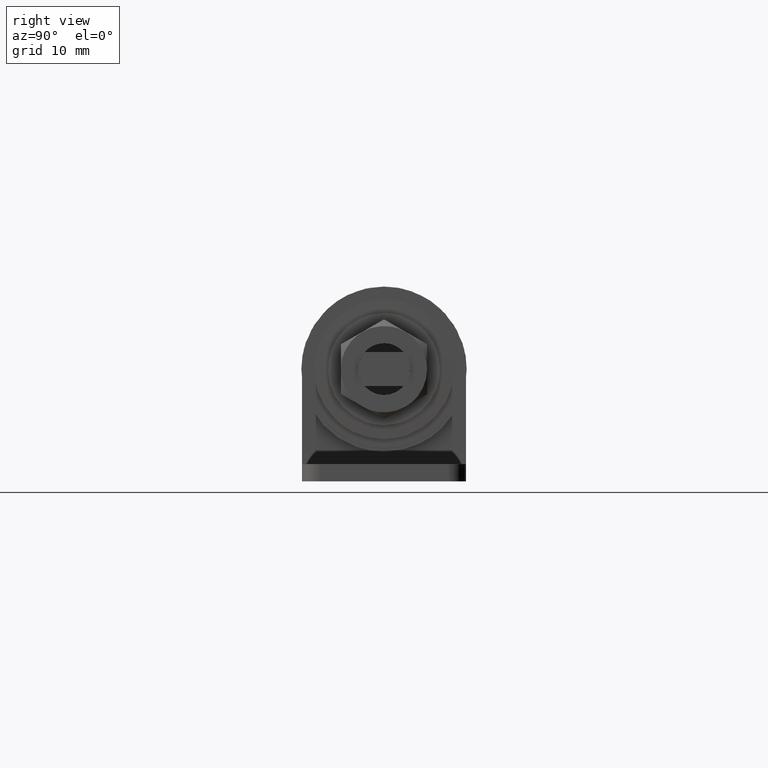
[diagram: clean part render]
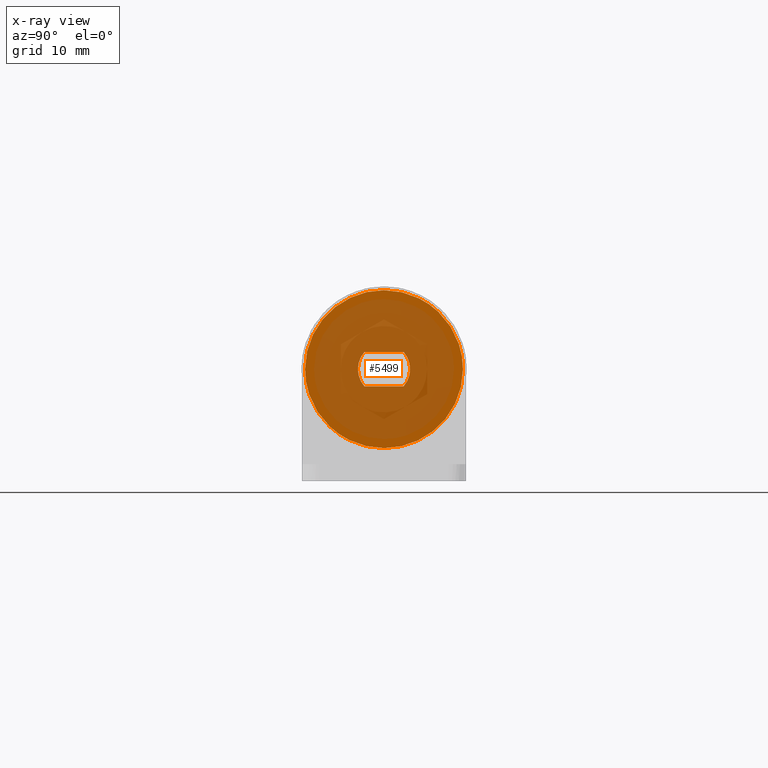
[diagram: x-ray — body ghosted, one internal face saturated and labeled with its STEP entity id]
A machine part, right view, then the same camera in x-ray: the body is ghosted and one INTERNAL B-rep face — a face not visible from any outside direction — is saturated and labeled: STEP entity #5499.
In plain terms, the highlighted face is a freeform B-spline surface patch.
Its self-contained STEP definition (entity closure, byte-faithful):
#5361=CARTESIAN_POINT('',(5.600000000000000,-10.064084964530981,10.064084964531050));
#5362=CARTESIAN_POINT('',(5.600000000000000,-10.064084964530981,-10.064085455375301));
#5363=CARTESIAN_POINT('',(5.600000000000000,10.064085455375221,10.064084964531050));
#5364=CARTESIAN_POINT('',(5.600000000000000,10.064085455375221,-10.064085455375301));
#5365=B_SPLINE_SURFACE_WITH_KNOTS('',1,1,((#5361,#5363),(#5362,#5364)),.UNSPECIFIED.,.F.,.F.,.U.,(2,2),(2,2),(0.0,20.128170419906350),(0.0,20.128170419906201),.UNSPECIFIED.);
#5366=CARTESIAN_POINT('',(5.600000000000001,-9.149999999999933,0.000001119337424));
#5367=VERTEX_POINT('',#5366);
#5368=CARTESIAN_POINT('',(5.600000000000000,0.0,9.150000000000000));
#5369=VERTEX_POINT('',#5368);
#5370=CARTESIAN_POINT('',(5.600000000000001,-9.149999999999933,0.000001119337424));
#5371=CARTESIAN_POINT('',(5.600000000000000,-9.150114911184714,0.636305251011756));
#5372=CARTESIAN_POINT('',(5.600000000000009,-9.051967114609912,1.571978246917177));
#5373=CARTESIAN_POINT('',(5.599999999999995,-8.689042798725739,2.948989197155811));
#5374=CARTESIAN_POINT('',(5.600000000000012,-8.278516273109323,3.957540490876312));
#5375=CARTESIAN_POINT('',(5.599999999999985,-7.668954364464931,5.033538343749192));
#5376=CARTESIAN_POINT('',(5.600000000000021,-6.908854679721618,6.058491185583561));
#5377=CARTESIAN_POINT('',(5.599999999999999,-5.994640325106886,6.950482365823654));
#5378=CARTESIAN_POINT('',(5.600000000000012,-4.760610037882865,7.865838613176359));
#5379=CARTESIAN_POINT('',(5.600000000000010,-3.351282442046127,8.586122095744923));
#5380=CARTESIAN_POINT('',(5.599999999999988,-1.609434698395024,9.056502266310158));
#5381=CARTESIAN_POINT('',(5.600000000000037,-0.524005611581474,9.150043101905633));
#5382=CARTESIAN_POINT('',(5.600000000000000,0.0,9.150000000000000));
#5383=B_SPLINE_CURVE_WITH_KNOTS('',3,(#5370,#5371,#5372,#5373,#5374,#5375,#5376,#5377,#5378,#5379,#5380,#5381,#5382),.UNSPECIFIED.,.F.,.U.,(4,1,1,1,1,1,1,1,1,1,4),(0.000000016779888,1.908886816364495,2.807195448600396,4.266954421153693,5.165266921753062,6.512726634868161,8.084730829926761,8.983038433542980,11.116521729690140,12.800852982897160,14.372875942426321),.UNSPECIFIED.);
#5384=EDGE_CURVE('',#5367,#5369,#5383,.T.);
#5385=ORIENTED_EDGE('',*,*,#5384,.F.);
#5386=CARTESIAN_POINT('',(5.599999999992878,-6.298444145070935,-6.637175320682058));
#5387=VERTEX_POINT('',#5386);
#5388=CARTESIAN_POINT('',(5.599999999992878,-6.298444145070935,-6.637175320682058));
#5389=CARTESIAN_POINT('',(5.599999999993422,-6.845672038185554,-6.118155503735961));
#5390=CARTESIAN_POINT('',(5.599999999994558,-7.686760500295582,-5.094247021541133));
#5391=CARTESIAN_POINT('',(5.599999999996142,-8.455453687069086,-3.589685409552490));
#5392=CARTESIAN_POINT('',(5.599999999997899,-8.998177335290826,-1.953065276292743));
#5393=CARTESIAN_POINT('',(5.599999999999137,-9.150267763053654,-0.792908389903752));
#5394=CARTESIAN_POINT('',(5.600000000000001,-9.149999999999933,0.000001119337424));
#5395=B_SPLINE_CURVE_WITH_KNOTS('',3,(#5388,#5389,#5390,#5391,#5392,#5393,#5394),.UNSPECIFIED.,.F.,.U.,(4,1,1,1,4),(0.000000014678680,2.262596579858248,3.945033478521351,5.047325193400663,7.425953121137829),.UNSPECIFIED.);
#5396=EDGE_CURVE('',#5387,#5367,#5395,.T.);
#5397=ORIENTED_EDGE('',*,*,#5396,.F.);
#5398=CARTESIAN_POINT('',(5.600000000000000,0.0,-9.150000000000000));
#5399=VERTEX_POINT('',#5398);
#5400=CARTESIAN_POINT('',(5.600000000000000,0.0,-9.150000000000000));
#5401=CARTESIAN_POINT('',(5.599999999999349,-0.578911417084653,-9.150076152626468));
#5402=CARTESIAN_POINT('',(5.599999999998314,-1.483417602154747,-9.063845507499465));
#5403=CARTESIAN_POINT('',(5.599999999996862,-2.784597980307653,-8.741028124358190));
#5404=CARTESIAN_POINT('',(5.599999999995545,-3.935438601422555,-8.297665290210244));
#5405=CARTESIAN_POINT('',(5.599999999994149,-5.166417374208802,-7.599308547402454));
#5406=CARTESIAN_POINT('',(5.599999999993325,-5.931038829491165,-6.985885290138933));
#5407=CARTESIAN_POINT('',(5.599999999992878,-6.298444145070935,-6.637175320682058));
#5408=B_SPLINE_CURVE_WITH_KNOTS('',3,(#5400,#5401,#5402,#5403,#5404,#5405,#5406,#5407),.UNSPECIFIED.,.F.,.U.,(4,1,1,1,1,4),(5.133026E-009,1.736721838537184,2.713633914292535,4.016163738718582,5.427257798008191,6.946887338730319),.UNSPECIFIED.);
#5409=EDGE_CURVE('',#5399,#5387,#5408,.T.);
#5410=ORIENTED_EDGE('',*,*,#5409,.F.);
#5411=CARTESIAN_POINT('',(5.600000000000000,9.149999999999931,-0.000001119337192));
#5412=VERTEX_POINT('',#5411);
#5413=CARTESIAN_POINT('',(5.600000000000000,9.149999999999931,-0.000001119337192));
#5414=CARTESIAN_POINT('',(5.599999999999998,9.150058977441841,-0.561438362630239));
#5415=CARTESIAN_POINT('',(5.600000000000005,9.053235490556405,-1.609431871486398));
#5416=CARTESIAN_POINT('',(5.599999999999993,8.700700595737306,-2.914390221747575));
#5417=CARTESIAN_POINT('',(5.600000000000017,8.170124315832446,-4.195431604166954));
#5418=CARTESIAN_POINT('',(5.599999999999962,7.474058035594291,-5.356745171473775));
#5419=CARTESIAN_POINT('',(5.600000000000047,6.542471753162700,-6.436612523731310));
#5420=CARTESIAN_POINT('',(5.599999999999970,5.615430158995673,-7.256336435604286));
#5421=CARTESIAN_POINT('',(5.600000000000015,4.528214051401422,-7.992511884167475));
#5422=CARTESIAN_POINT('',(5.599999999999985,3.169805304950221,-8.635050231408238));
#5423=CARTESIAN_POINT('',(5.600000000000029,1.609438584378063,-9.056521142270810));
#5424=CARTESIAN_POINT('',(5.599999999999973,0.524006678392621,-9.150038088079858));
#5425=CARTESIAN_POINT('',(5.600000000000000,0.0,-9.150000000000000));
#5426=B_SPLINE_CURVE_WITH_KNOTS('',3,(#5413,#5414,#5415,#5416,#5417,#5418,#5419,#5420,#5421,#5422,#5423,#5424,#5425),.UNSPECIFIED.,.F.,.U.,(4,1,1,1,1,1,1,1,1,1,4),(0.000000016779925,1.684310722272434,3.144062822024125,4.042376173344778,5.838999540819952,7.186437991075034,8.309306993846972,9.544482698650334,11.116521729690190,12.800852982897270,14.372875942426440),.UNSPECIFIED.);
#5427=EDGE_CURVE('',#5412,#5399,#5426,.T.);
#5428=ORIENTED_EDGE('',*,*,#5427,.F.);
#5429=CARTESIAN_POINT('',(5.599999999992877,6.298444145070974,6.637175320682099));
#5430=VERTEX_POINT('',#5429);
#5431=CARTESIAN_POINT('',(5.599999999992877,6.298444145070974,6.637175320682099));
#5432=CARTESIAN_POINT('',(5.599999999993295,6.705286715957758,6.251175331967377));
#5433=CARTESIAN_POINT('',(5.599999999993986,7.268413729972836,5.608503131218742));
#5434=CARTESIAN_POINT('',(5.599999999995255,8.053766455208717,4.410269492078515));
#5435=CARTESIAN_POINT('',(5.599999999996568,8.613410123789828,3.213724086002311));
#5436=CARTESIAN_POINT('',(5.599999999998182,9.046983066646261,1.643736943864043));
#5437=CARTESIAN_POINT('',(5.599999999999385,9.150080888351328,0.599494187966309));
#5438=CARTESIAN_POINT('',(5.600000000000000,9.149999999999931,-0.000001119337192));
#5439=B_SPLINE_CURVE_WITH_KNOTS('',3,(#5431,#5432,#5433,#5434,#5435,#5436,#5437,#5438),.UNSPECIFIED.,.F.,.U.,(4,1,1,1,1,4),(0.000000014681703,1.682442191394005,2.552677165497595,4.293122244059165,5.627480154881309,7.425953121137598),.UNSPECIFIED.);
#5440=EDGE_CURVE('',#5430,#5412,#5439,.T.);
#5441=ORIENTED_EDGE('',*,*,#5440,.F.);
#5442=CARTESIAN_POINT('',(5.600000000000000,0.0,9.150000000000000));
#5443=CARTESIAN_POINT('',(5.599999999999428,0.506541936267795,9.150039375999244));
#5444=CARTESIAN_POINT('',(5.599999999998323,1.483435075698072,9.068676484154375));
#5445=CARTESIAN_POINT('',(5.599999999996842,2.786618423318424,8.745351639044795));
#5446=CARTESIAN_POINT('',(5.599999999995450,3.998566318379912,8.261847819625807));
#5447=CARTESIAN_POINT('',(5.599999999994257,5.166413942690389,7.599305251733285));
#5448=CARTESIAN_POINT('',(5.599999999993219,5.931040045007780,6.985886295055744));
#5449=CARTESIAN_POINT('',(5.599999999992877,6.298444145070974,6.637175320682099));
#5450=B_SPLINE_CURVE_WITH_KNOTS('',3,(#5442,#5443,#5444,#5445,#5446,#5447,#5448,#5449),.UNSPECIFIED.,.F.,.U.,(4,1,1,1,1,4),(5.131846E-009,1.519629545863455,2.930723605138715,4.016163738718219,5.427257798008036,6.946887338730348),.UNSPECIFIED.);
#5451=EDGE_CURVE('',#5369,#5430,#5450,.T.);
#5452=ORIENTED_EDGE('',*,*,#5451,.F.);
#5453=EDGE_LOOP('',(#5385,#5397,#5410,#5428,#5441,#5452));
#5454=FACE_OUTER_BOUND('',#5453,.T.);
#5455=CARTESIAN_POINT('',(5.600000000000000,2.269498843357275,-2.0));
#5456=VERTEX_POINT('',#5455);
#5457=CARTESIAN_POINT('',(5.600000000000000,2.269498843357275,2.0));
#5458=VERTEX_POINT('',#5457);
#5459=CARTESIAN_POINT('',(5.600000000000000,2.269498843357275,-2.0));
#5460=CARTESIAN_POINT('',(5.600000000000001,2.427553012865441,-1.820723282524814));
#5461=CARTESIAN_POINT('',(5.600000000000012,2.720351337296353,-1.396139471429050));
#5462=CARTESIAN_POINT('',(5.599999999999985,3.004000559647985,-0.619331094248173));
#5463=CARTESIAN_POINT('',(5.600000000000010,3.052467605845149,0.162083123860996));
#5464=CARTESIAN_POINT('',(5.599999999999995,2.908499178955948,0.926148117656232));
#5465=CARTESIAN_POINT('',(5.600000000000002,2.647627724064125,1.514046758221756));
#5466=CARTESIAN_POINT('',(5.600000000000002,2.382365712619875,1.871925524993665));
#5467=CARTESIAN_POINT('',(5.600000000000000,2.269498843357275,2.0));
#5468=B_SPLINE_CURVE_WITH_KNOTS('',3,(#5459,#5460,#5461,#5462,#5463,#5464,#5465,#5466,#5467),.UNSPECIFIED.,.F.,.U.,(4,1,1,1,1,1,4),(0.000000079862623,0.717000338956158,1.536442625517635,2.458274536593994,3.038718799951620,3.858158625675205,4.370300625702790),.UNSPECIFIED.);
#5469=EDGE_CURVE('',#5456,#5458,#5468,.T.);
#5470=ORIENTED_EDGE('',*,*,#5469,.F.);
#5471=CARTESIAN_POINT('',(5.600000000000000,-2.269498843357275,-2.0));
#5472=VERTEX_POINT('',#5471);
#5473=CARTESIAN_POINT('',(5.600000000000000,-2.269498843357275,-2.0));
#5474=CARTESIAN_POINT('',(5.600000000000000,2.269498843357275,-2.0));
#5475=QUASI_UNIFORM_CURVE('',1,(#5473,#5474),.UNSPECIFIED.,.F.,.U.);
#5476=EDGE_CURVE('',#5472,#5456,#5475,.T.);
#5477=ORIENTED_EDGE('',*,*,#5476,.F.);
#5478=CARTESIAN_POINT('',(5.600000000000000,-2.269498843357275,2.0));
#5479=VERTEX_POINT('',#5478);
#5480=CARTESIAN_POINT('',(5.600000000000000,-2.269498843357275,2.0));
#5481=CARTESIAN_POINT('',(5.600000000000002,-2.487879457439785,1.752498453558047));
#5482=CARTESIAN_POINT('',(5.599999999999989,-2.829976798544580,1.204635635524909));
#5483=CARTESIAN_POINT('',(5.600000000000006,-3.040317847208829,0.355281097286645));
#5484=CARTESIAN_POINT('',(5.600000000000014,-3.023355441370125,-0.389049805348134));
#5485=CARTESIAN_POINT('',(5.600000000000005,-2.870256423334669,-1.022879270598792));
#5486=CARTESIAN_POINT('',(5.599999999999950,-2.613584079045558,-1.559914441845421));
#5487=CARTESIAN_POINT('',(5.600000000000099,-2.382371971461602,-1.871928000714106));
#5488=CARTESIAN_POINT('',(5.600000000000000,-2.269498843357275,-2.0));
#5489=B_SPLINE_CURVE_WITH_KNOTS('',3,(#5480,#5481,#5482,#5483,#5484,#5485,#5486,#5487,#5488),.UNSPECIFIED.,.F.,.U.,(4,1,1,1,1,1,4),(0.000000079863031,0.990144298528796,1.912026899893101,2.594846875570035,3.209439027356874,3.858158625675198,4.370300625702790),.UNSPECIFIED.);
#5490=EDGE_CURVE('',#5479,#5472,#5489,.T.);
#5491=ORIENTED_EDGE('',*,*,#5490,.F.);
#5492=CARTESIAN_POINT('',(5.600000000000000,2.269498843357275,2.0));
#5493=CARTESIAN_POINT('',(5.600000000000000,-2.269498843357275,2.0));
#5494=QUASI_UNIFORM_CURVE('',1,(#5492,#5493),.UNSPECIFIED.,.F.,.U.);
#5495=EDGE_CURVE('',#5458,#5479,#5494,.T.);
#5496=ORIENTED_EDGE('',*,*,#5495,.F.);
#5497=EDGE_LOOP('',(#5470,#5477,#5491,#5496));
#5498=FACE_BOUND('',#5497,.T.);
#5499=ADVANCED_FACE('',(#5454,#5498),#5365,.T.);